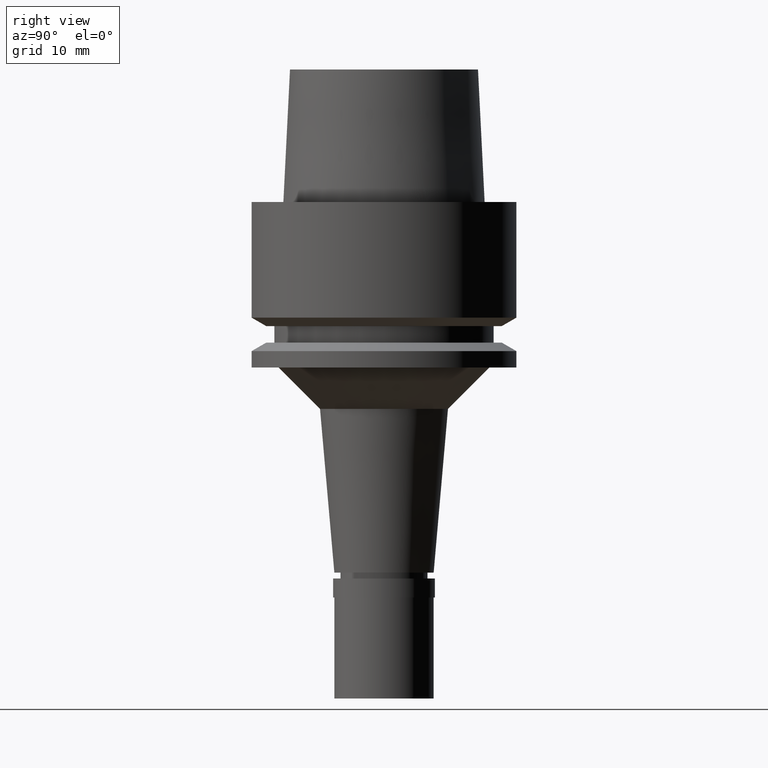
[diagram: clean part render]
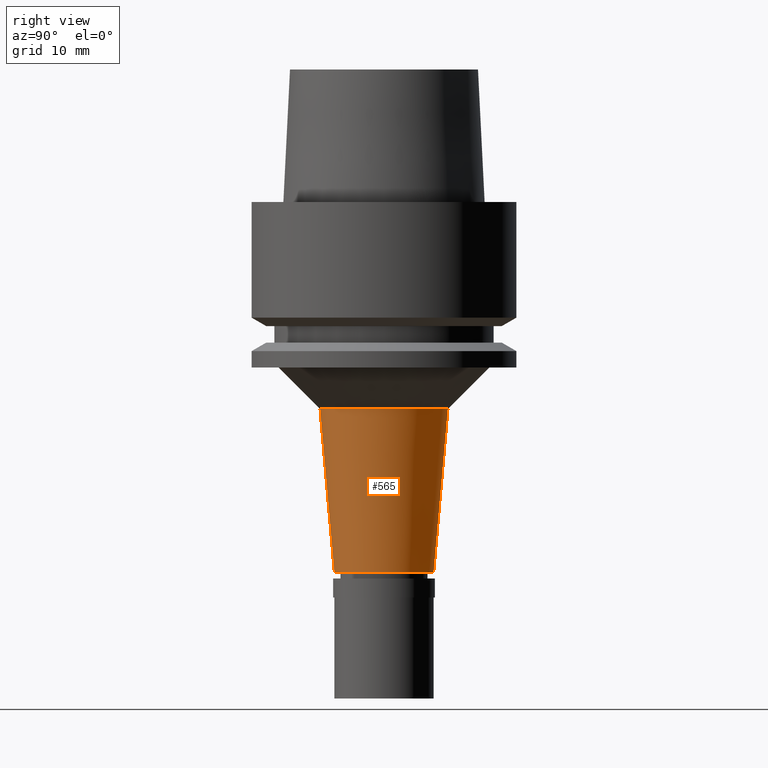
[diagram: same view with one face highlighted and labeled with its STEP entity id]
A machine part, right view. The second image highlights one B-rep face of the part: STEP entity #565.
In plain terms, the highlighted conical surface has half-angle 5 deg.
Its self-contained STEP definition (entity closure, byte-faithful):
#13 = CARTESIAN_POINT ( 'NONE',  ( 0.0000000000000000000, 0.0000000000000000000, -34.89999999999999858 ) ) ;
#24 = CARTESIAN_POINT ( 'NONE',  ( 0.0000000000000000000, 6.000000000000000000, -44.79999999999999716 ) ) ;
#194 = FACE_OUTER_BOUND ( 'NONE', #263, .T. ) ;
#241 = VERTEX_POINT ( 'NONE', #277 ) ;
#263 = EDGE_LOOP ( 'NONE', ( #1345, #2430, #1146, #1991 ) ) ;
#266 = VECTOR ( 'NONE', #801, 1000.000000000000114 ) ;
#277 = CARTESIAN_POINT ( 'NONE',  ( 0.0000000000000000000, -6.000000000000000000, -44.79999999999999716 ) ) ;
#304 = EDGE_CURVE ( 'NONE', #1068, #757, #1941, .T. ) ;
#315 = DIRECTION ( 'NONE',  ( 0.0000000000000000000, -1.000000000000000000, 0.0000000000000000000 ) ) ;
#337 = AXIS2_PLACEMENT_3D ( 'NONE', #13, #2492, #1873 ) ;
#423 = CIRCLE ( 'NONE', #768, 7.732275537814000010 ) ;
#565 = ADVANCED_FACE ( 'NONE', ( #194 ), #942, .T. ) ;
#605 = EDGE_CURVE ( 'NONE', #2196, #1068, #423, .T. ) ;
#757 = VERTEX_POINT ( 'NONE', #24 ) ;
#768 = AXIS2_PLACEMENT_3D ( 'NONE', #1021, #2088, #1861 ) ;
#801 = DIRECTION ( 'NONE',  ( 0.0000000000000000000, 0.08715574274761432594, -0.9961946980917494310 ) ) ;
#942 = CONICAL_SURFACE ( 'NONE', #337, 6.866137768907000449, 0.08726646259969973729 ) ;
#1021 = CARTESIAN_POINT ( 'NONE',  ( 0.0000000000000000000, 0.0000000000000000000, -25.00000000000000000 ) ) ;
#1068 = VERTEX_POINT ( 'NONE', #1372 ) ;
#1146 = ORIENTED_EDGE ( 'NONE', *, *, #1672, .T. ) ;
#1345 = ORIENTED_EDGE ( 'NONE', *, *, #605, .F. ) ;
#1372 = CARTESIAN_POINT ( 'NONE',  ( 0.0000000000000000000, 7.732275537812999922, -25.00000000000000000 ) ) ;
#1393 = CARTESIAN_POINT ( 'NONE',  ( 0.0000000000000000000, -7.732275537812999922, -25.00000000000000000 ) ) ;
#1433 = CARTESIAN_POINT ( 'NONE',  ( 0.0000000000000000000, -7.732275537812999922, -25.00000000000000000 ) ) ;
#1447 = CIRCLE ( 'NONE', #2222, 6.000000000000000000 ) ;
#1597 = VECTOR ( 'NONE', #2165, 1000.000000000000114 ) ;
#1611 = CARTESIAN_POINT ( 'NONE',  ( 0.0000000000000000000, 0.0000000000000000000, -44.79999999999999716 ) ) ;
#1654 = LINE ( 'NONE', #1433, #266 ) ;
#1672 = EDGE_CURVE ( 'NONE', #241, #757, #1447, .T. ) ;
#1777 = EDGE_CURVE ( 'NONE', #2196, #241, #1654, .T. ) ;
#1861 = DIRECTION ( 'NONE',  ( 0.0000000000000000000, -1.000000000000000000, 0.0000000000000000000 ) ) ;
#1873 = DIRECTION ( 'NONE',  ( 0.0000000000000000000, 1.000000000000000000, 0.0000000000000000000 ) ) ;
#1941 = LINE ( 'NONE', #1955, #1597 ) ;
#1955 = CARTESIAN_POINT ( 'NONE',  ( 0.0000000000000000000, 7.732275537812999922, -25.00000000000000000 ) ) ;
#1991 = ORIENTED_EDGE ( 'NONE', *, *, #304, .F. ) ;
#2088 = DIRECTION ( 'NONE',  ( 0.0000000000000000000, 0.0000000000000000000, 1.000000000000000000 ) ) ;
#2165 = DIRECTION ( 'NONE',  ( 0.0000000000000000000, -0.08715574274761432594, -0.9961946980917494310 ) ) ;
#2196 = VERTEX_POINT ( 'NONE', #1393 ) ;
#2222 = AXIS2_PLACEMENT_3D ( 'NONE', #1611, #2410, #315 ) ;
#2410 = DIRECTION ( 'NONE',  ( 0.0000000000000000000, 0.0000000000000000000, 1.000000000000000000 ) ) ;
#2430 = ORIENTED_EDGE ( 'NONE', *, *, #1777, .T. ) ;
#2492 = DIRECTION ( 'NONE',  ( 0.0000000000000000000, 0.0000000000000000000, 1.000000000000000000 ) ) ;